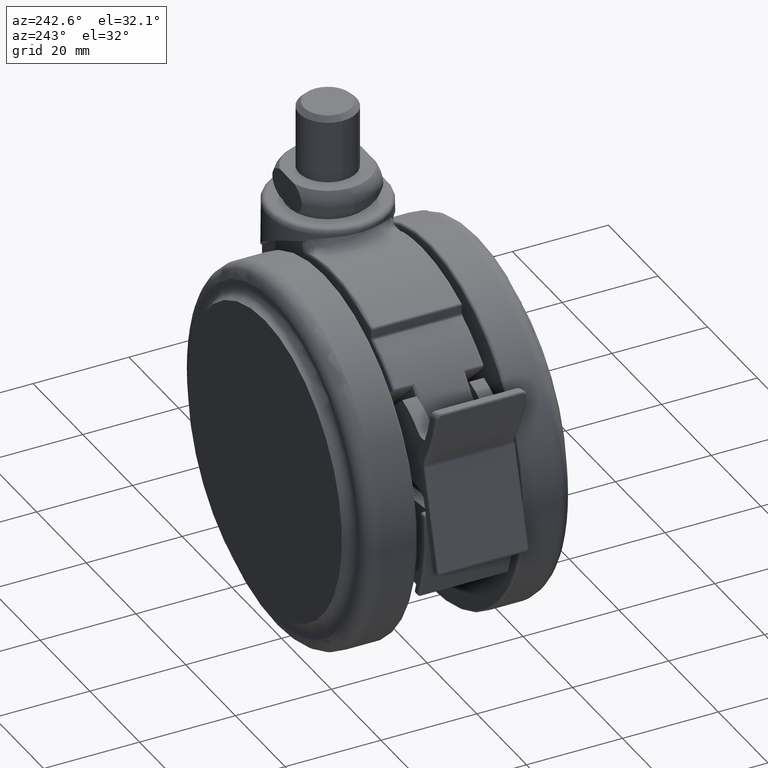
[diagram: clean part render]
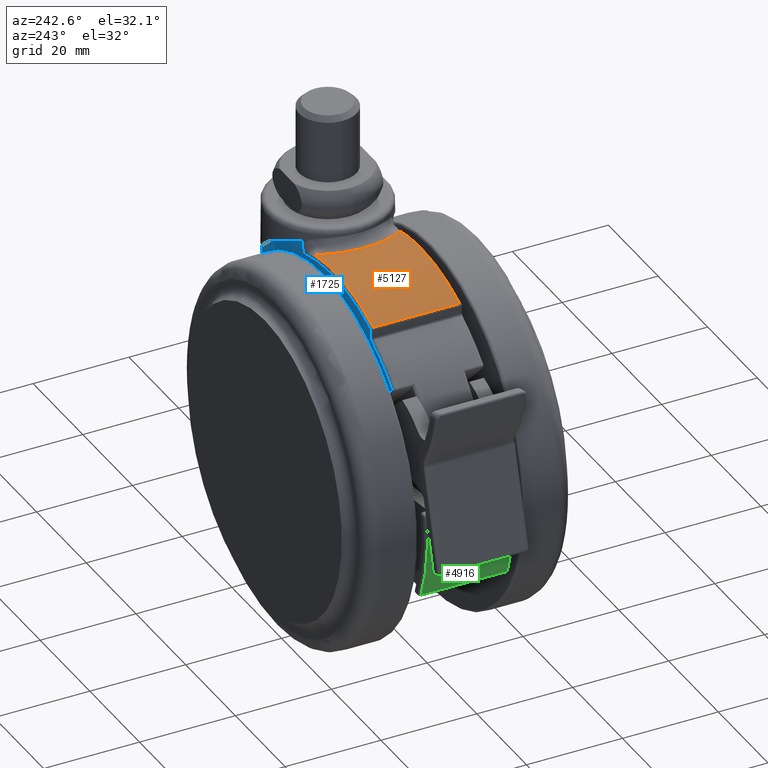
[diagram: same view with three faces highlighted in distinct colors, each labeled with its STEP entity id]
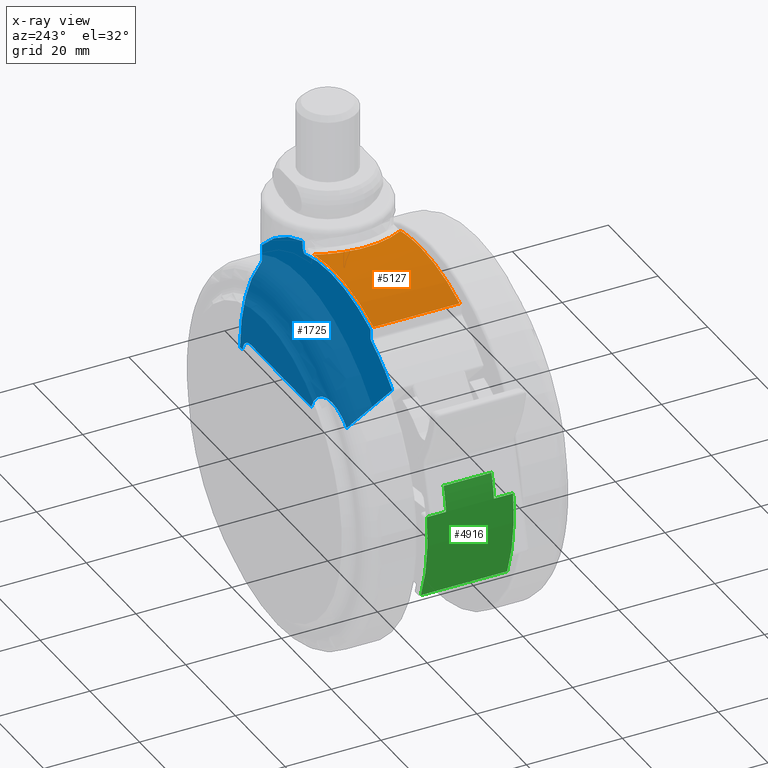
[diagram: x-ray of the same camera — body ghosted, the three highlighted faces saturated]
A machine part, auxiliary view with three faces highlighted in distinct colors.
The next image is the same camera in x-ray (body ghosted, the three faces saturated) — at least one of them is partly hidden behind the body in this view.
Their STEP definitions:

[orange] entity #5127 — the highlighted cylindrical surface (partial cylindrical patch) has radius 37.5 mm, axis along (0, -1, 0).
#77 = ORIENTED_EDGE ( 'NONE', *, *, #4960, .T. ) ;
#290 = CARTESIAN_POINT ( 'NONE',  ( -14.46055519043960800, 3.201425114573142900, -3.411173859305353800 ) ) ;
#348 = CARTESIAN_POINT ( 'NONE',  ( -11.80583892490720100, -8.999999999999799300, -3.906206478756240100 ) ) ;
#830 = AXIS2_PLACEMENT_3D ( 'NONE', #5727, #1669, #6408 ) ;
#945 = CARTESIAN_POINT ( 'NONE',  ( -12.71933375164516100, -7.671364508898795600, -3.711651338640235700 ) ) ;
#971 = CARTESIAN_POINT ( 'NONE',  ( -13.89717161774413700, 5.120679773975008500, -3.499709419589013900 ) ) ;
#1211 = CARTESIAN_POINT ( 'NONE',  ( -20.00000000000045100, 0.0000000000000000000, -40.50000000000000000 ) ) ;
#1449 = ORIENTED_EDGE ( 'NONE', *, *, #7736, .T. ) ;
#1576 = AXIS2_PLACEMENT_3D ( 'NONE', #1211, #5951, #3245 ) ;
#1629 = CARTESIAN_POINT ( 'NONE',  ( -13.76673725347666100, -5.515690235254416200, -3.520798847902592200 ) ) ;
#1657 = AXIS2_PLACEMENT_3D ( 'NONE', #7548, #3552, #8218 ) ;
#1659 = CARTESIAN_POINT ( 'NONE',  ( -13.44440981816782200, 6.240356713991120700, -3.577115905190118500 ) ) ;
#1669 = DIRECTION ( 'NONE',  ( 0.0000000000000000000, -1.000000000000000000, 0.0000000000000000000 ) ) ;
#1842 = CARTESIAN_POINT ( 'NONE',  ( -35.70945945945850000, 0.0000000000000000000, -6.449113322974390000 ) ) ;
#1866 = ORIENTED_EDGE ( 'NONE', *, *, #2282, .T. ) ;
#1881 = B_SPLINE_CURVE_WITH_KNOTS ( 'NONE', 3,
 ( #4367, #8340, #945, #5682, #1629, #6369, #2319, #7052, #3002, #7693, #3705, #8371, #4395, #290, #5047, #971, #5710, #1659, #6393, #2340, #7078, #3032 ),
 .UNSPECIFIED., .F., .F.,
 ( 4, 2, 2, 2, 2, 2, 2, 2, 2, 2, 4 ),
 ( 0.0000000000000000000, 0.002433144462994349000, 0.004866288925988697900, 0.007299433388983046400, 0.009732577851977395800, 0.01094915008347457100, 0.01216572231497174500, 0.01459886677796609300, 0.01581543900946326800, 0.01703201124096044600, 0.01946515570395479500 ),
 .UNSPECIFIED. ) ;
#2282 = EDGE_CURVE ( 'NONE', #7597, #6911, #5362, .T. ) ;
#2318 = ORIENTED_EDGE ( 'NONE', *, *, #3299, .T. ) ;
#2319 = CARTESIAN_POINT ( 'NONE',  ( -14.46233037150766300, -3.193139030446999100, -3.410910313829803800 ) ) ;
#2340 = CARTESIAN_POINT ( 'NONE',  ( -12.71572096823816400, 7.677998888504805400, -3.712341789016044400 ) ) ;
#2682 = CARTESIAN_POINT ( 'NONE',  ( -35.70945945945850000, 9.000000000000199000, -6.449113322974390000 ) ) ;
#2911 = AXIS2_PLACEMENT_3D ( 'NONE', #7310, #3278, #7959 ) ;
#3002 = CARTESIAN_POINT ( 'NONE',  ( -14.77833516021256700, -0.8047802647944869400, -3.365323263524405900 ) ) ;
#3032 = CARTESIAN_POINT ( 'NONE',  ( -11.80583892490692000, 9.000000000000199000, -3.906206478756300000 ) ) ;
#3187 = CARTESIAN_POINT ( 'NONE',  ( -35.70945945945850000, -8.999999999999799300, -6.449113322974390000 ) ) ;
#3245 = DIRECTION ( 'NONE',  ( 0.0000000000000000000, 0.0000000000000000000, -1.000000000000000000 ) ) ;
#3278 = DIRECTION ( 'NONE',  ( 0.0000000000000000000, 1.000000000000000000, 0.0000000000000000000 ) ) ;
#3299 = EDGE_CURVE ( 'NONE', #7632, #5097, #6500, .T. ) ;
#3494 = FACE_OUTER_BOUND ( 'NONE', #4844, .T. ) ;
#3552 = DIRECTION ( 'NONE',  ( 0.0000000000000000000, 1.000000000000000000, 0.0000000000000000000 ) ) ;
#3705 = CARTESIAN_POINT ( 'NONE',  ( -14.76286249200867000, 0.8001164787444028400, -3.367488309329601700 ) ) ;
#4137 = ORIENTED_EDGE ( 'NONE', *, *, #8412, .T. ) ;
#4367 = CARTESIAN_POINT ( 'NONE',  ( -11.80583892490720100, -8.999999999999799300, -3.906206478756240100 ) ) ;
#4395 = CARTESIAN_POINT ( 'NONE',  ( -14.65106184547922300, 2.009139325001239500, -3.383386752798714300 ) ) ;
#4415 = VERTEX_POINT ( 'NONE', #4577 ) ;
#4577 = CARTESIAN_POINT ( 'NONE',  ( -11.80583892490692000, 9.000000000000199000, -3.906206478756300000 ) ) ;
#4844 = EDGE_LOOP ( 'NONE', ( #1449, #1866, #4137, #77, #2318 ) ) ;
#4960 = EDGE_CURVE ( 'NONE', #4415, #7632, #5896, .T. ) ;
#5047 = CARTESIAN_POINT ( 'NONE',  ( -14.27199484134090400, 3.979332644004980800, -3.439184762139114500 ) ) ;
#5097 = VERTEX_POINT ( 'NONE', #3187 ) ;
#5127 = ADVANCED_FACE ( 'NONE', ( #3494 ), #7974, .T. ) ;
#5362 = CIRCLE ( 'NONE', #1657, 37.50000000000000000 ) ;
#5682 = CARTESIAN_POINT ( 'NONE',  ( -13.45667544474254900, -6.252393314288934100, -3.573375431617505300 ) ) ;
#5710 = CARTESIAN_POINT ( 'NONE',  ( -13.75682373942462900, 5.496854230182186100, -3.523008739348636900 ) ) ;
#5727 = CARTESIAN_POINT ( 'NONE',  ( -20.00000000000045100, 9.000000000000199000, -40.50000000000000000 ) ) ;
#5896 = CIRCLE ( 'NONE', #830, 37.50000000000000000 ) ;
#5951 = DIRECTION ( 'NONE',  ( 0.0000000000000000000, -1.000000000000000000, 0.0000000000000000000 ) ) ;
#6369 = CARTESIAN_POINT ( 'NONE',  ( -14.26965428946589900, -3.988591974172911200, -3.439535616074076400 ) ) ;
#6393 = CARTESIAN_POINT ( 'NONE',  ( -13.27228778837124200, 6.607394942648217500, -3.607947769029147700 ) ) ;
#6408 = DIRECTION ( 'NONE',  ( 0.0000000000000000000, 0.0000000000000000000, -1.000000000000000000 ) ) ;
#6500 = LINE ( 'NONE', #1842, #8475 ) ;
#6719 = CARTESIAN_POINT ( 'NONE',  ( -20.00000000000045100, -8.999999999999799300, -3.000000000000002700 ) ) ;
#6911 = VERTEX_POINT ( 'NONE', #348 ) ;
#7052 = CARTESIAN_POINT ( 'NONE',  ( -14.71545526549742400, -1.603279406154955100, -3.373999062487971700 ) ) ;
#7078 = CARTESIAN_POINT ( 'NONE',  ( -12.28907039948639800, 8.357025413212014100, -3.798000245998260000 ) ) ;
#7310 = CARTESIAN_POINT ( 'NONE',  ( -20.00000000000045100, -8.999999999999799300, -40.50000000000000000 ) ) ;
#7442 = CIRCLE ( 'NONE', #2911, 37.50000000000000000 ) ;
#7548 = CARTESIAN_POINT ( 'NONE',  ( -20.00000000000045100, -8.999999999999799300, -40.50000000000000000 ) ) ;
#7597 = VERTEX_POINT ( 'NONE', #6719 ) ;
#7632 = VERTEX_POINT ( 'NONE', #2682 ) ;
#7693 = CARTESIAN_POINT ( 'NONE',  ( -14.77855356133890500, 0.3982309277750187800, -3.365292554086369800 ) ) ;
#7736 = EDGE_CURVE ( 'NONE', #5097, #7597, #7442, .T. ) ;
#7959 = DIRECTION ( 'NONE',  ( 0.0000000000000000000, 0.0000000000000000000, 1.000000000000000000 ) ) ;
#7974 = CYLINDRICAL_SURFACE ( 'NONE', #1576, 37.50000000000000000 ) ;
#8218 = DIRECTION ( 'NONE',  ( 0.0000000000000000000, 0.0000000000000000000, 1.000000000000000000 ) ) ;
#8340 = CARTESIAN_POINT ( 'NONE',  ( -12.28908347849011800, -8.357008010647227500, -3.797997317319584500 ) ) ;
#8371 = CARTESIAN_POINT ( 'NONE',  ( -14.69919688183547300, 1.605694505952603800, -3.376523330406665700 ) ) ;
#8412 = EDGE_CURVE ( 'NONE', #6911, #4415, #1881, .T. ) ;
#8475 = VECTOR ( 'NONE', #8549, 1000.000000000000000 ) ;
#8549 = DIRECTION ( 'NONE',  ( 0.0000000000000000000, -1.000000000000000000, 0.0000000000000000000 ) ) ;

[blue] entity #1725 — the highlighted planar face has unit normal (0, -1, 0).
#2 = AXIS2_PLACEMENT_3D ( 'NONE', #5881, #1834, #6568 ) ;
#27 = VERTEX_POINT ( 'NONE', #7953 ) ;
#56 = CARTESIAN_POINT ( 'NONE',  ( -8.831760866327609700, 9.500000000000199000, -5.225782295661130000 ) ) ;
#159 = LINE ( 'NONE', #7369, #1736 ) ;
#199 = B_SPLINE_CURVE_WITH_KNOTS ( 'NONE', 3,
 ( #56, #4815, #731, #5485, #1417, #6159, #2109, #6848 ),
 .UNSPECIFIED., .F., .F.,
 ( 4, 2, 2, 4 ),
 ( -8.944435975499101500E-006, 0.0004794894199234643700, 0.0009679232758224279200, 0.001944790987620354900 ),
 .UNSPECIFIED. ) ;
#332 = VERTEX_POINT ( 'NONE', #3204 ) ;
#416 = VERTEX_POINT ( 'NONE', #2905 ) ;
#431 = ORIENTED_EDGE ( 'NONE', *, *, #5960, .T. ) ;
#459 = CARTESIAN_POINT ( 'NONE',  ( 8.124038404635797400, 9.500000000000170500, -15.86307825652001600 ) ) ;
#536 = CARTESIAN_POINT ( 'NONE',  ( -20.00000000000045100, 9.500000000000199000, -40.50000000000000000 ) ) ;
#658 = CARTESIAN_POINT ( 'NONE',  ( -20.00000000000045100, 9.500000000000199000, -40.50000000000000000 ) ) ;
#731 = CARTESIAN_POINT ( 'NONE',  ( -8.583903345386142200, 9.500000000000199000, -5.018180822626842300 ) ) ;
#777 = CIRCLE ( 'NONE', #2359, 35.00000000000000000 ) ;
#893 = VECTOR ( 'NONE', #6646, 1000.000000000000000 ) ;
#1052 = VERTEX_POINT ( 'NONE', #4227 ) ;
#1118 = CARTESIAN_POINT ( 'NONE',  ( -8.831760866327609700, 9.500000000000199000, -5.225782295661130000 ) ) ;
#1245 = CARTESIAN_POINT ( 'NONE',  ( -8.124038404635760100, 9.500000000000199000, -1000.000000000000000 ) ) ;
#1292 = EDGE_CURVE ( 'NONE', #3250, #8715, #3821, .T. ) ;
#1354 = DIRECTION ( 'NONE',  ( 1.781607894246450600E-015, 0.0000000000000000000, -1.000000000000000000 ) ) ;
#1413 = AXIS2_PLACEMENT_3D ( 'NONE', #658, #5420, #1354 ) ;
#1417 = CARTESIAN_POINT ( 'NONE',  ( -8.332634709573721200, 9.500000000000199000, -4.604580872608091900 ) ) ;
#1438 = VERTEX_POINT ( 'NONE', #5172 ) ;
#1632 = ORIENTED_EDGE ( 'NONE', *, *, #5352, .T. ) ;
#1702 = ORIENTED_EDGE ( 'NONE', *, *, #7048, .T. ) ;
#1725 = ADVANCED_FACE ( 'NONE', ( #6228 ), #3659, .F. ) ;
#1736 = VECTOR ( 'NONE', #4702, 1000.000000000000000 ) ;
#1796 = AXIS2_PLACEMENT_3D ( 'NONE', #1874, #6623, #2557 ) ;
#1827 = CARTESIAN_POINT ( 'NONE',  ( 8.224974784552570000, 9.500000000000197200, -16.29663876818938600 ) ) ;
#1834 = DIRECTION ( 'NONE',  ( -0.0000000000000000000, -1.000000000000000000, -0.0000000000000000000 ) ) ;
#1874 = CARTESIAN_POINT ( 'NONE',  ( 12.61329079872270000, 9.500000000000199000, -40.50000000000000000 ) ) ;
#1907 = EDGE_CURVE ( 'NONE', #7499, #1438, #7855, .T. ) ;
#1935 = DIRECTION ( 'NONE',  ( 0.0000000000000000000, 0.0000000000000000000, 1.000000000000000000 ) ) ;
#1974 = EDGE_CURVE ( 'NONE', #3745, #7981, #4125, .T. ) ;
#2109 = CARTESIAN_POINT ( 'NONE',  ( -8.124038404635769000, 9.500000000000199000, -3.831983192338841400 ) ) ;
#2167 = ORIENTED_EDGE ( 'NONE', *, *, #1907, .T. ) ;
#2188 = LINE ( 'NONE', #3275, #7351 ) ;
#2306 = CIRCLE ( 'NONE', #1796, 3.386609185796432400 ) ;
#2359 = AXIS2_PLACEMENT_3D ( 'NONE', #7764, #3784, #8449 ) ;
#2472 = ORIENTED_EDGE ( 'NONE', *, *, #2737, .T. ) ;
#2499 = VECTOR ( 'NONE', #5161, 1000.000000000000000 ) ;
#2503 = AXIS2_PLACEMENT_3D ( 'NONE', #536, #8555, #6136 ) ;
#2510 = CARTESIAN_POINT ( 'NONE',  ( 8.426652558376089200, 9.500000000000197200, -16.69356666590831000 ) ) ;
#2557 = DIRECTION ( 'NONE',  ( 0.0000000000000000000, 0.0000000000000000000, -1.000000000000000000 ) ) ;
#2563 = EDGE_LOOP ( 'NONE', ( #431, #7814, #4923, #7125, #5750, #3566, #2167, #7732, #6395, #1632, #3879, #2472, #2920, #3094, #1702 ) ) ;
#2566 = CARTESIAN_POINT ( 'NONE',  ( -35.49999999999905500, 9.500000000000199000, -8.540013787232229700 ) ) ;
#2598 = VECTOR ( 'NONE', #6567, 1000.000000000000000 ) ;
#2649 = AXIS2_PLACEMENT_3D ( 'NONE', #6795, #2733, #7446 ) ;
#2733 = DIRECTION ( 'NONE',  ( -1.505161159488250100E-015, -1.000000000000000000, -0.0000000000000000000 ) ) ;
#2737 = EDGE_CURVE ( 'NONE', #3745, #8018, #2188, .T. ) ;
#2800 = EDGE_CURVE ( 'NONE', #8460, #7034, #159, .T. ) ;
#2843 = DIRECTION ( 'NONE',  ( 0.0000000000000000000, -1.000000000000000000, 0.0000000000000000000 ) ) ;
#2905 = CARTESIAN_POINT ( 'NONE',  ( 12.61329079872270000, 9.500000000000199000, -37.11339081420334900 ) ) ;
#2920 = ORIENTED_EDGE ( 'NONE', *, *, #4409, .T. ) ;
#2930 = DIRECTION ( 'NONE',  ( 0.0000000000000000000, 0.0000000000000000000, -1.000000000000000000 ) ) ;
#3020 = AXIS2_PLACEMENT_3D ( 'NONE', #7678, #3689, #8351 ) ;
#3094 = ORIENTED_EDGE ( 'NONE', *, *, #1292, .T. ) ;
#3201 = CARTESIAN_POINT ( 'NONE',  ( 8.666369378572113600, 9.500000000000199000, -17.06595441164669300 ) ) ;
#3204 = CARTESIAN_POINT ( 'NONE',  ( -36.04117498773619800, 9.500000000000199000, -9.428540437435819000 ) ) ;
#3250 = VERTEX_POINT ( 'NONE', #3798 ) ;
#3275 = CARTESIAN_POINT ( 'NONE',  ( 8.124038404635760100, 9.500000000000199000, -1000.000000000000000 ) ) ;
#3361 = CIRCLE ( 'NONE', #3020, 1.000000000000000900 ) ;
#3381 = EDGE_CURVE ( 'NONE', #416, #1052, #6304, .T. ) ;
#3565 = CARTESIAN_POINT ( 'NONE',  ( 15.96278654843200200, 9.500000000000199000, -40.00000000000000000 ) ) ;
#3566 = ORIENTED_EDGE ( 'NONE', *, *, #6371, .F. ) ;
#3569 = CARTESIAN_POINT ( 'NONE',  ( 8.124038404635760100, 9.500000000000289500, -12.76395010433990000 ) ) ;
#3606 = LINE ( 'NONE', #1245, #4978 ) ;
#3659 = PLANE ( 'NONE',  #6247 ) ;
#3689 = DIRECTION ( 'NONE',  ( -0.0000000000000000000, 1.000000000000000000, -0.0000000000000000000 ) ) ;
#3745 = VERTEX_POINT ( 'NONE', #3569 ) ;
#3784 = DIRECTION ( 'NONE',  ( -0.0000000000000000000, 1.000000000000000000, -0.0000000000000000000 ) ) ;
#3798 = CARTESIAN_POINT ( 'NONE',  ( 8.831760866327629200, 9.500000000000199000, -17.31100335618489800 ) ) ;
#3821 = CIRCLE ( 'NONE', #2503, 37.00000000000000000 ) ;
#3879 = ORIENTED_EDGE ( 'NONE', *, *, #1974, .F. ) ;
#3902 = CARTESIAN_POINT ( 'NONE',  ( 8.831760866327629200, 9.500000000000199000, -17.31100335618489800 ) ) ;
#4125 = CIRCLE ( 'NONE', #2, 39.50000000000000000 ) ;
#4171 = EDGE_CURVE ( 'NONE', #7712, #27, #199, .T. ) ;
#4227 = CARTESIAN_POINT ( 'NONE',  ( -11.66148225266118000, 9.500000000000000000, -37.11339081420334900 ) ) ;
#4409 = EDGE_CURVE ( 'NONE', #8018, #3250, #5001, .T. ) ;
#4425 = CARTESIAN_POINT ( 'NONE',  ( 8.124038404635760100, 9.500000000000199000, -15.71283845110859900 ) ) ;
#4702 = DIRECTION ( 'NONE',  ( -0.7040120613137790300, -0.0000000000000000000, 0.7101880156160929000 ) ) ;
#4815 = CARTESIAN_POINT ( 'NONE',  ( -8.693447959101101600, 9.500000000000204300, -5.139892515620267900 ) ) ;
#4923 = ORIENTED_EDGE ( 'NONE', *, *, #6758, .T. ) ;
#4978 = VECTOR ( 'NONE', #1935, 1000.000000000000000 ) ;
#5001 = B_SPLINE_CURVE_WITH_KNOTS ( 'NONE', 3,
 ( #5210, #459, #5874, #1827, #6562, #2510, #7244, #3201, #7878, #3902 ),
 .UNSPECIFIED., .F., .F.,
 ( 4, 2, 2, 2, 4 ),
 ( 4.220764384040162200E-017, 0.0004443445753759310400, 0.0008886891507518197900, 0.001333033726127708700, 0.001777378301503597500 ),
 .UNSPECIFIED. ) ;
#5151 = CIRCLE ( 'NONE', #1413, 37.00000000000000000 ) ;
#5161 = DIRECTION ( 'NONE',  ( 0.0000000000000000000, 0.0000000000000000000, 1.000000000000000000 ) ) ;
#5172 = CARTESIAN_POINT ( 'NONE',  ( -35.49999999999905500, 9.500000000000199000, -6.903125145334739100 ) ) ;
#5210 = CARTESIAN_POINT ( 'NONE',  ( 8.124038404635760100, 9.500000000000199000, -15.71283845110859900 ) ) ;
#5217 = CARTESIAN_POINT ( 'NONE',  ( 15.49989998451910000, 9.500000000000199000, -40.00000000000000000 ) ) ;
#5352 = EDGE_CURVE ( 'NONE', #27, #7981, #3606, .T. ) ;
#5420 = DIRECTION ( 'NONE',  ( -0.0000000000000000000, 1.000000000000000000, -0.0000000000000000000 ) ) ;
#5445 = CARTESIAN_POINT ( 'NONE',  ( -20.00000000000045100, 9.500000000000199000, -40.50000000000000000 ) ) ;
#5485 = CARTESIAN_POINT ( 'NONE',  ( -8.402229706500193600, 9.500000000000199000, -4.749623610910843400 ) ) ;
#5596 = VERTEX_POINT ( 'NONE', #3565 ) ;
#5750 = ORIENTED_EDGE ( 'NONE', *, *, #8476, .T. ) ;
#5874 = CARTESIAN_POINT ( 'NONE',  ( 8.144399320436297900, 9.500000000000199000, -16.00985676273132100 ) ) ;
#5881 = CARTESIAN_POINT ( 'NONE',  ( -20.00000000000045100, 9.500000000000289500, -40.50000000000000000 ) ) ;
#5960 = EDGE_CURVE ( 'NONE', #5596, #416, #2306, .T. ) ;
#6136 = DIRECTION ( 'NONE',  ( -1.781607894246450600E-015, 0.0000000000000000000, -1.000000000000000000 ) ) ;
#6159 = CARTESIAN_POINT ( 'NONE',  ( -8.168647018875523400, 9.500000000000199000, -4.147386034263600900 ) ) ;
#6228 = FACE_OUTER_BOUND ( 'NONE', #2563, .T. ) ;
#6247 = AXIS2_PLACEMENT_3D ( 'NONE', #5445, #2843, #2930 ) ;
#6304 = LINE ( 'NONE', #7925, #893 ) ;
#6371 = EDGE_CURVE ( 'NONE', #7499, #332, #3361, .T. ) ;
#6395 = ORIENTED_EDGE ( 'NONE', *, *, #4171, .T. ) ;
#6508 = CARTESIAN_POINT ( 'NONE',  ( -35.49999999999905500, 9.500000000000199000, -40.50000000000000000 ) ) ;
#6562 = CARTESIAN_POINT ( 'NONE',  ( 8.285993613020696800, 9.500000000000199000, -16.43418828690633000 ) ) ;
#6567 = DIRECTION ( 'NONE',  ( -1.000000000000000000, -0.0000000000000000000, -0.0000000000000000000 ) ) ;
#6568 = DIRECTION ( 'NONE',  ( 2.635023001483757700E-015, 0.0000000000000000000, 1.000000000000000000 ) ) ;
#6623 = DIRECTION ( 'NONE',  ( 0.0000000000000000000, -1.000000000000000000, 0.0000000000000000000 ) ) ;
#6646 = DIRECTION ( 'NONE',  ( -1.000000000000000000, -0.0000000000000000000, -0.0000000000000000000 ) ) ;
#6758 = EDGE_CURVE ( 'NONE', #1052, #8460, #7856, .T. ) ;
#6795 = CARTESIAN_POINT ( 'NONE',  ( -20.00000000000000000, 9.500000000000000000, -40.50000000000000000 ) ) ;
#6848 = CARTESIAN_POINT ( 'NONE',  ( -8.124038404635760100, 9.500000000000199000, -3.509269517877109800 ) ) ;
#7034 = VERTEX_POINT ( 'NONE', #7828 ) ;
#7048 = EDGE_CURVE ( 'NONE', #8715, #5596, #7966, .T. ) ;
#7125 = ORIENTED_EDGE ( 'NONE', *, *, #2800, .T. ) ;
#7180 = EDGE_CURVE ( 'NONE', #1438, #7712, #5151, .T. ) ;
#7244 = CARTESIAN_POINT ( 'NONE',  ( 8.505494601823150100, 9.500000000000199000, -16.81831342349474700 ) ) ;
#7341 = DIRECTION ( 'NONE',  ( -0.0000000000000000000, -0.0000000000000000000, -1.000000000000000000 ) ) ;
#7351 = VECTOR ( 'NONE', #7341, 1000.000000000000000 ) ;
#7369 = CARTESIAN_POINT ( 'NONE',  ( -44.61507475483134800, 9.500000000000199000, -14.95877409994924000 ) ) ;
#7446 = DIRECTION ( 'NONE',  ( 0.0000000000000000000, 0.0000000000000000000, 1.000000000000000000 ) ) ;
#7457 = CARTESIAN_POINT ( 'NONE',  ( 16.99662146737135200, 9.500000000000199000, -40.00000000000000000 ) ) ;
#7499 = VERTEX_POINT ( 'NONE', #2566 ) ;
#7678 = CARTESIAN_POINT ( 'NONE',  ( -36.49999999999905500, 9.500000000000199000, -8.540013787232229700 ) ) ;
#7712 = VERTEX_POINT ( 'NONE', #1118 ) ;
#7732 = ORIENTED_EDGE ( 'NONE', *, *, #7180, .T. ) ;
#7742 = CARTESIAN_POINT ( 'NONE',  ( -25.97122904234370100, 9.500000000000000000, -33.76617317390184800 ) ) ;
#7764 = CARTESIAN_POINT ( 'NONE',  ( -19.98229955853674900, 9.500000000000199000, -40.52697319456125100 ) ) ;
#7814 = ORIENTED_EDGE ( 'NONE', *, *, #3381, .T. ) ;
#7828 = CARTESIAN_POINT ( 'NONE',  ( -44.26048969851194700, 9.500000000000199000, -15.31646975795350100 ) ) ;
#7855 = LINE ( 'NONE', #6508, #2499 ) ;
#7856 = CIRCLE ( 'NONE', #2649, 9.000000000000278900 ) ;
#7878 = CARTESIAN_POINT ( 'NONE',  ( 8.748747627920588200, 9.500000000000199000, -17.18833790242796100 ) ) ;
#7925 = CARTESIAN_POINT ( 'NONE',  ( -11.47547729145607900, 9.500000000000199000, -37.11339081420334900 ) ) ;
#7953 = CARTESIAN_POINT ( 'NONE',  ( -8.124038404635760100, 9.500000000000199000, -3.509269517877109800 ) ) ;
#7966 = LINE ( 'NONE', #5217, #2598 ) ;
#7981 = VERTEX_POINT ( 'NONE', #8381 ) ;
#8018 = VERTEX_POINT ( 'NONE', #4425 ) ;
#8351 = DIRECTION ( 'NONE',  ( -1.387778780781444400E-014, 0.0000000000000000000, -1.000000000000000000 ) ) ;
#8381 = CARTESIAN_POINT ( 'NONE',  ( -8.124038404635760100, 9.500000000000289500, -2.827575918379995100 ) ) ;
#8449 = DIRECTION ( 'NONE',  ( 0.0000000000000000000, 0.0000000000000000000, -1.000000000000000000 ) ) ;
#8460 = VERTEX_POINT ( 'NONE', #7742 ) ;
#8476 = EDGE_CURVE ( 'NONE', #7034, #332, #777, .T. ) ;
#8555 = DIRECTION ( 'NONE',  ( -0.0000000000000000000, 1.000000000000000000, -0.0000000000000000000 ) ) ;
#8715 = VERTEX_POINT ( 'NONE', #7457 ) ;

[green] entity #4916 — the highlighted cylindrical surface (partial cylindrical patch) has radius 37.5 mm, axis along (0, -1, 0).
#79 = CARTESIAN_POINT ( 'NONE',  ( -57.22934582111319900, 9.000000000000199000, -36.00268861073725200 ) ) ;
#296 = VERTEX_POINT ( 'NONE', #5183 ) ;
#324 = DIRECTION ( 'NONE',  ( 0.0000000000000000000, -1.000000000000000000, 0.0000000000000000000 ) ) ;
#337 = VERTEX_POINT ( 'NONE', #2271 ) ;
#368 = AXIS2_PLACEMENT_3D ( 'NONE', #4327, #5668, #3664 ) ;
#381 = VERTEX_POINT ( 'NONE', #3060 ) ;
#506 = CARTESIAN_POINT ( 'NONE',  ( -57.22934582111319900, 0.0000000000000000000, -36.00268861073725200 ) ) ;
#594 = LINE ( 'NONE', #506, #7578 ) ;
#642 = EDGE_LOOP ( 'NONE', ( #4506, #1931, #3861, #7631, #2901, #6931, #3329, #1287 ) ) ;
#703 = CYLINDRICAL_SURFACE ( 'NONE', #368, 37.50000000000000000 ) ;
#859 = AXIS2_PLACEMENT_3D ( 'NONE', #5552, #7184, #7085 ) ;
#869 = CARTESIAN_POINT ( 'NONE',  ( -56.24285212014639500, 0.0000000000000000000, -30.87162162162139700 ) ) ;
#1015 = EDGE_CURVE ( 'NONE', #4509, #296, #3727, .T. ) ;
#1175 = EDGE_CURVE ( 'NONE', #2752, #4509, #594, .T. ) ;
#1287 = ORIENTED_EDGE ( 'NONE', *, *, #1015, .T. ) ;
#1362 = AXIS2_PLACEMENT_3D ( 'NONE', #7276, #3235, #7916 ) ;
#1507 = DIRECTION ( 'NONE',  ( -0.0000000000000000000, 1.000000000000000000, -0.0000000000000000000 ) ) ;
#1540 = LINE ( 'NONE', #4938, #8709 ) ;
#1557 = DIRECTION ( 'NONE',  ( -1.505161159488250100E-015, -1.000000000000000000, 0.0000000000000000000 ) ) ;
#1613 = DIRECTION ( 'NONE',  ( 1.000000000000000000, -1.503427012513232700E-015, 0.0000000000000000000 ) ) ;
#1633 = EDGE_CURVE ( 'NONE', #7131, #2752, #3722, .T. ) ;
#1666 = CARTESIAN_POINT ( 'NONE',  ( -20.00000000000045100, 4.999999933647179900, -40.50000000000000000 ) ) ;
#1744 = VECTOR ( 'NONE', #4951, 1000.000000000000000 ) ;
#1911 = CARTESIAN_POINT ( 'NONE',  ( -20.00000000000045100, -8.999999999999799300, -40.50000000000000000 ) ) ;
#1931 = ORIENTED_EDGE ( 'NONE', *, *, #7510, .T. ) ;
#1951 = CARTESIAN_POINT ( 'NONE',  ( -56.24285212014639500, 4.999999933647230500, -30.87162162162139700 ) ) ;
#1960 = CIRCLE ( 'NONE', #4002, 37.50000000000000000 ) ;
#1964 = LINE ( 'NONE', #869, #1744 ) ;
#2006 = EDGE_CURVE ( 'NONE', #7283, #7105, #7260, .T. ) ;
#2170 = CARTESIAN_POINT ( 'NONE',  ( -57.22934582111319900, -4.999999933647150600, -36.00268861073725200 ) ) ;
#2271 = CARTESIAN_POINT ( 'NONE',  ( -54.83465260741189700, -8.999999999999799300, -54.38513513513500200 ) ) ;
#2334 = EDGE_CURVE ( 'NONE', #381, #7283, #1540, .T. ) ;
#2592 = DIRECTION ( 'NONE',  ( 0.0000000000000000000, 0.0000000000000000000, 1.000000000000000000 ) ) ;
#2752 = VERTEX_POINT ( 'NONE', #7982 ) ;
#2901 = ORIENTED_EDGE ( 'NONE', *, *, #6310, .T. ) ;
#3060 = CARTESIAN_POINT ( 'NONE',  ( -57.22934582111319900, -8.999999999999799300, -36.00268861073725200 ) ) ;
#3079 = AXIS2_PLACEMENT_3D ( 'NONE', #1666, #1557, #1613 ) ;
#3235 = DIRECTION ( 'NONE',  ( 0.0000000000000000000, 1.000000000000000000, 0.0000000000000000000 ) ) ;
#3329 = ORIENTED_EDGE ( 'NONE', *, *, #1175, .T. ) ;
#3664 = DIRECTION ( 'NONE',  ( 0.0000000000000000000, 0.0000000000000000000, -1.000000000000000000 ) ) ;
#3722 = CIRCLE ( 'NONE', #3079, 37.50000000000000000 ) ;
#3727 = CIRCLE ( 'NONE', #859, 37.50000000000000000 ) ;
#3861 = ORIENTED_EDGE ( 'NONE', *, *, #2334, .T. ) ;
#3872 = EDGE_CURVE ( 'NONE', #296, #337, #7292, .T. ) ;
#4002 = AXIS2_PLACEMENT_3D ( 'NONE', #1911, #6655, #2592 ) ;
#4327 = CARTESIAN_POINT ( 'NONE',  ( -20.00000000000045100, 0.0000000000000000000, -40.50000000000000000 ) ) ;
#4506 = ORIENTED_EDGE ( 'NONE', *, *, #3872, .T. ) ;
#4509 = VERTEX_POINT ( 'NONE', #79 ) ;
#4824 = DIRECTION ( 'NONE',  ( -0.0000000000000000000, 1.000000000000000000, -0.0000000000000000000 ) ) ;
#4916 = ADVANCED_FACE ( 'NONE', ( #6341 ), #703, .T. ) ;
#4938 = CARTESIAN_POINT ( 'NONE',  ( -57.22934582111319900, 0.0000000000000000000, -36.00268861073725200 ) ) ;
#4951 = DIRECTION ( 'NONE',  ( -0.0000000000000000000, 1.000000000000000000, -0.0000000000000000000 ) ) ;
#5183 = CARTESIAN_POINT ( 'NONE',  ( -54.83465260741189700, 9.000000000000199000, -54.38513513513500200 ) ) ;
#5506 = VECTOR ( 'NONE', #324, 1000.000000000000000 ) ;
#5552 = CARTESIAN_POINT ( 'NONE',  ( -20.00000000000045100, 9.000000000000199000, -40.50000000000000000 ) ) ;
#5668 = DIRECTION ( 'NONE',  ( 0.0000000000000000000, -1.000000000000000000, 0.0000000000000000000 ) ) ;
#6310 = EDGE_CURVE ( 'NONE', #7105, #7131, #1964, .T. ) ;
#6341 = FACE_OUTER_BOUND ( 'NONE', #642, .T. ) ;
#6404 = CARTESIAN_POINT ( 'NONE',  ( -54.83465260741189700, 0.0000000000000000000, -54.38513513513500200 ) ) ;
#6655 = DIRECTION ( 'NONE',  ( 0.0000000000000000000, 1.000000000000000000, 0.0000000000000000000 ) ) ;
#6931 = ORIENTED_EDGE ( 'NONE', *, *, #1633, .T. ) ;
#7085 = DIRECTION ( 'NONE',  ( 0.0000000000000000000, 0.0000000000000000000, -1.000000000000000000 ) ) ;
#7105 = VERTEX_POINT ( 'NONE', #7973 ) ;
#7131 = VERTEX_POINT ( 'NONE', #1951 ) ;
#7184 = DIRECTION ( 'NONE',  ( 0.0000000000000000000, -1.000000000000000000, 0.0000000000000000000 ) ) ;
#7260 = CIRCLE ( 'NONE', #1362, 37.50000000000000000 ) ;
#7276 = CARTESIAN_POINT ( 'NONE',  ( -20.00000000000045100, -4.999999933647150600, -40.50000000000000000 ) ) ;
#7283 = VERTEX_POINT ( 'NONE', #2170 ) ;
#7292 = LINE ( 'NONE', #6404, #5506 ) ;
#7510 = EDGE_CURVE ( 'NONE', #337, #381, #1960, .T. ) ;
#7578 = VECTOR ( 'NONE', #4824, 1000.000000000000000 ) ;
#7631 = ORIENTED_EDGE ( 'NONE', *, *, #2006, .T. ) ;
#7916 = DIRECTION ( 'NONE',  ( 0.0000000000000000000, 0.0000000000000000000, 1.000000000000000000 ) ) ;
#7973 = CARTESIAN_POINT ( 'NONE',  ( -56.24285212014639500, -4.999999933647150600, -30.87162162162139700 ) ) ;
#7982 = CARTESIAN_POINT ( 'NONE',  ( -57.22934582111319900, 4.999999933647230500, -36.00268861073725200 ) ) ;
#8709 = VECTOR ( 'NONE', #1507, 1000.000000000000000 ) ;